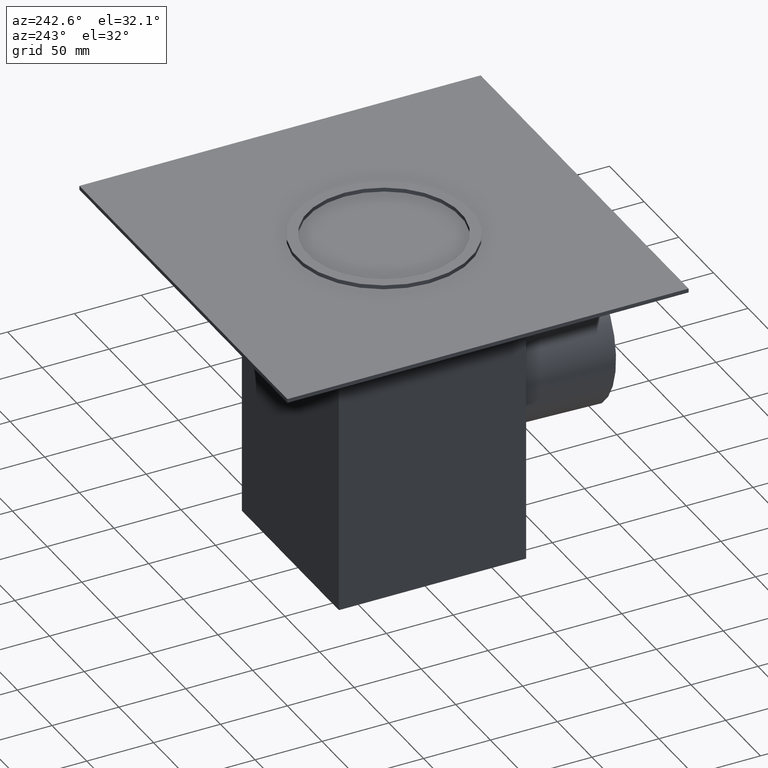
[diagram: clean part render]
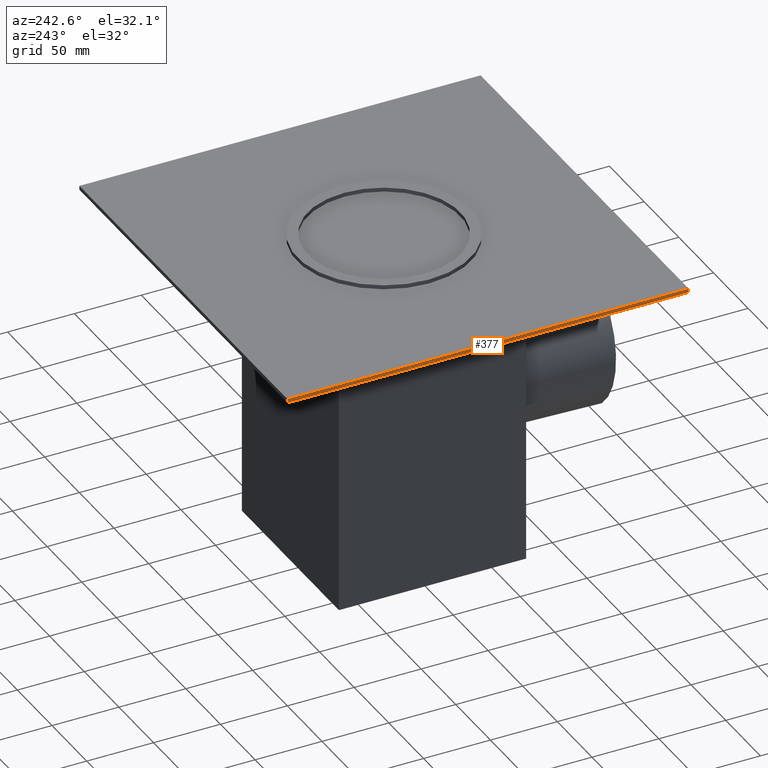
[diagram: same view with one face highlighted and labeled with its STEP entity id]
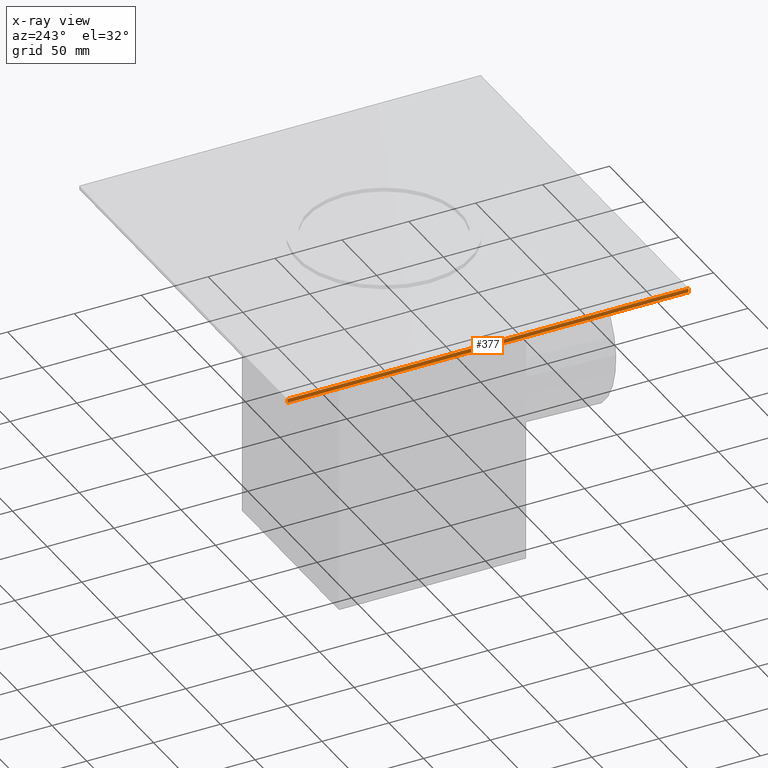
[diagram: x-ray of the same camera — body ghosted, the highlighted face saturated]
A machine part, auxiliary view. The second image highlights one B-rep face of the part: STEP entity #377.
The next image is the same camera in x-ray: the body ghosted, the highlighted face saturated — about 0% of this face is hidden behind the body in this view.
In plain terms, the highlighted planar face has unit normal (-1, -0, 0).
Its self-contained STEP definition (entity closure, byte-faithful):
#37=PLANE('',#440);
#61=FACE_OUTER_BOUND('',#87,.T.);
#87=EDGE_LOOP('',(#329,#330,#331,#332));
#118=LINE('',#650,#150);
#120=LINE('',#654,#152);
#121=LINE('',#656,#153);
#122=LINE('',#657,#154);
#150=VECTOR('',#543,304.8);
#152=VECTOR('',#547,304.8);
#153=VECTOR('',#548,304.8);
#154=VECTOR('',#549,304.8);
#201=VERTEX_POINT('',#647);
#202=VERTEX_POINT('',#649);
#203=VERTEX_POINT('',#653);
#204=VERTEX_POINT('',#655);
#246=EDGE_CURVE('',#202,#201,#118,.T.);
#248=EDGE_CURVE('',#203,#201,#120,.T.);
#249=EDGE_CURVE('',#204,#203,#121,.T.);
#250=EDGE_CURVE('',#202,#204,#122,.T.);
#329=ORIENTED_EDGE('',*,*,#248,.F.);
#330=ORIENTED_EDGE('',*,*,#249,.F.);
#331=ORIENTED_EDGE('',*,*,#250,.F.);
#332=ORIENTED_EDGE('',*,*,#246,.T.);
#377=ADVANCED_FACE('',(#61),#37,.T.);
#440=AXIS2_PLACEMENT_3D('',#652,#545,#546);
#543=DIRECTION('',(0.,0.,1.));
#545=DIRECTION('center_axis',(-1.,-5.63993296509578E-17,0.));
#546=DIRECTION('ref_axis',(0.,0.,-1.));
#547=DIRECTION('',(5.63993296509578E-17,-1.,0.));
#548=DIRECTION('',(0.,0.,1.));
#549=DIRECTION('',(-5.63993296509578E-17,1.,0.));
#647=CARTESIAN_POINT('',(-150.,-150.,3.00000000000016));
#649=CARTESIAN_POINT('',(-150.,-150.,0.));
#650=CARTESIAN_POINT('',(-150.,-150.,0.));
#652=CARTESIAN_POINT('Origin',(-150.,150.,3.00000000000016));
#653=CARTESIAN_POINT('',(-150.,150.,3.00000000000016));
#654=CARTESIAN_POINT('',(-150.,150.,3.00000000000016));
#655=CARTESIAN_POINT('',(-150.,150.,0.));
#656=CARTESIAN_POINT('',(-150.,150.,0.));
#657=CARTESIAN_POINT('',(-150.,-150.,0.));